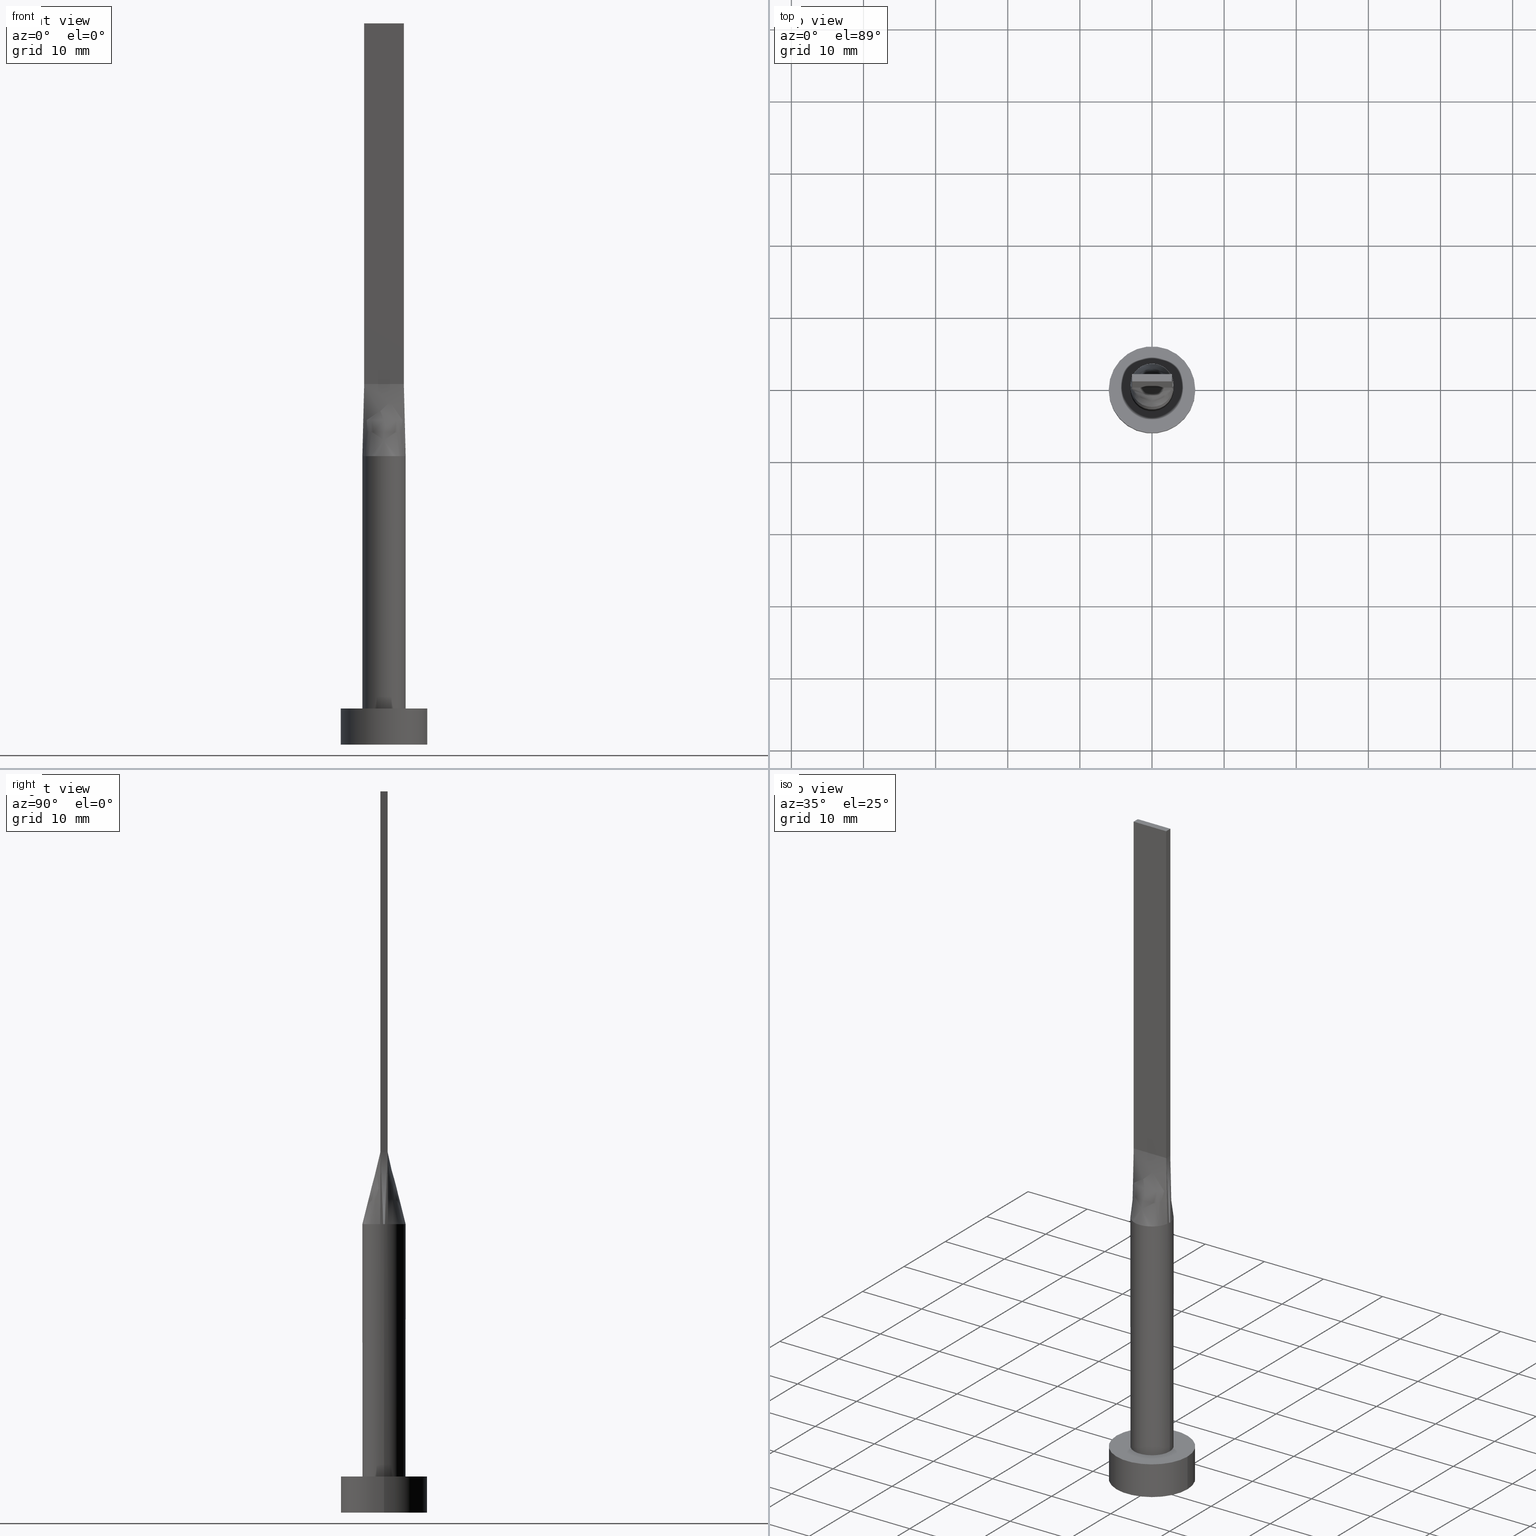
[diagram: canonical four-view strip — front | top / right | iso, engineering-drawing reading convention]
A machine part, canonical four-view strip (front | top / right | iso — engineering-drawing reading convention). The complete STEP part file that produces these views, byte-faithful:
ISO-10303-21;
HEADER;
FILE_DESCRIPTION (( 'STEP AP203' ),
    '1' );
FILE_NAME ('8c4a.STEP',
    '2023-02-13T10:31:02',
    ( '' ),
    ( '' ),
    'SwSTEP 2.0',
    'SolidWorks 2019',
    '' );
FILE_SCHEMA (( 'CONFIG_CONTROL_DESIGN' ));
ENDSEC;

DATA;
#1 = CARTESIAN_POINT ( 'NONE',  ( -2.829409566978767110, -1.041313647073048854, 40.00000000000001421 ) ) ;
#2 = PERSON_AND_ORGANIZATION ( #155, #391 ) ;
#3 = AXIS2_PLACEMENT_3D ( 'NONE', #577, #175, #482 ) ;
#4 = VERTEX_POINT ( 'NONE', #68 ) ;
#5 = FACE_OUTER_BOUND ( 'NONE', #225, .T. ) ;
#6 = ORIENTED_EDGE ( 'NONE', *, *, #278, .F. ) ;
#7 = CARTESIAN_POINT ( 'NONE',  ( -2.750000000000000000, -0.1666666666666636043, 50.00000000000000000 ) ) ;
#8 = VECTOR ( 'NONE', #64, 1000.000000000000000 ) ;
#9 = ADVANCED_FACE ( 'NONE', ( #572 ), #337, .F. ) ;
#10 = LINE ( 'NONE', #544, #196 ) ;
#11 = ORIENTED_EDGE ( 'NONE', *, *, #378, .F. ) ;
#12 = CARTESIAN_POINT ( 'NONE',  ( -2.750000000000000000, -0.4999999999999994449, 50.00000000000000000 ) ) ;
#13 = VECTOR ( 'NONE', #40, 1000.000000000000000 ) ;
#14 = ORIENTED_EDGE ( 'NONE', *, *, #573, .F. ) ;
#15 = CARTESIAN_POINT ( 'NONE',  ( 1.604166666666662078, 0.5000000000000002220, 50.00000000000000000 ) ) ;
#16 = DIRECTION ( 'NONE',  ( -0.02015674154923149941, -0.003664862099860237768, -0.9997901152521495582 ) ) ;
#17 = EDGE_LOOP ( 'NONE', ( #442, #360, #386, #162, #246 ) ) ;
#18 = ADVANCED_FACE ( 'NONE', ( #557 ), #67, .F. ) ;
#19 = CARTESIAN_POINT ( 'NONE',  ( 2.567367750129863957, 1.580669302822274913, 40.00000000000000000 ) ) ;
#20 = FACE_OUTER_BOUND ( 'NONE', #17, .T. ) ;
#21 = CC_DESIGN_PERSON_AND_ORGANIZATION_ASSIGNMENT ( #450, #184, ( #178 ) ) ;
#22 = CARTESIAN_POINT ( 'NONE',  ( 2.750000000000000000, 0.5000000000000002220, 100.0000000000000000 ) ) ;
#23 = DIRECTION ( 'NONE',  ( -0.000000000000000000, -0.000000000000000000, -1.000000000000000000 ) ) ;
#24 = CARTESIAN_POINT ( 'NONE',  ( 2.829409566978765334, -1.041313647073049742, 40.00000000000001421 ) ) ;
#25 = FACE_OUTER_BOUND ( 'NONE', #144, .T. ) ;
#26 = DESIGN_CONTEXT ( 'detailed design', #32, 'design' ) ;
#27 = DATE_AND_TIME ( #167, #486 ) ;
#28 = EDGE_LOOP ( 'NONE', ( #542, #11, #303, #357 ) ) ;
#29 = EDGE_CURVE ( 'NONE', #525, #312, #374, .T. ) ;
#30 = VECTOR ( 'NONE', #158, 1000.000000000000000 ) ;
#31 = CARTESIAN_POINT ( 'NONE',  ( 2.750000000000000000, -0.4999999999999997780, 100.0000000000000000 ) ) ;
#32 = APPLICATION_CONTEXT ( 'configuration controlled 3d designs of mechanical parts and assemblies' ) ;
#33 = CALENDAR_DATE ( 2023, 13, 2 ) ;
#34 = CARTESIAN_POINT ( 'NONE',  ( 0.000000000000000000, 0.000000000000000000, 40.00000000000000000 ) ) ;
#35 = CARTESIAN_POINT ( 'NONE',  ( -2.520833333333333925, 0.5000000000000002220, 50.00000000000000000 ) ) ;
#36 = ORIENTED_EDGE ( 'NONE', *, *, #119, .T. ) ;
#37 = CARTESIAN_POINT ( 'NONE',  ( -2.750000000000000000, 0.5000000000000002220, 50.00000000000000000 ) ) ;
#38 = EDGE_CURVE ( 'NONE', #254, #407, #110, .T. ) ;
#39 = DIRECTION ( 'NONE',  ( 1.000000000000000000, 0.000000000000000000, -0.000000000000000000 ) ) ;
#40 = DIRECTION ( 'NONE',  ( -0.000000000000000000, -0.000000000000000000, -1.000000000000000000 ) ) ;
#41 = LOCAL_TIME ( 11, 31, 2.000000000000000000, #130 ) ;
#42 = CARTESIAN_POINT ( 'NONE',  ( 0.8331239790496237640, 2.909606296598776787, 40.00000000000000000 ) ) ;
#43 = ORIENTED_EDGE ( 'NONE', *, *, #476, .F. ) ;
#44 = CIRCLE ( 'NONE', #367, 6.000000000000000888 ) ;
#45 = EDGE_LOOP ( 'NONE', ( #151, #73, #224, #154 ) ) ;
#46 = ORIENTED_EDGE ( 'NONE', *, *, #251, .F. ) ;
#47 = DIRECTION ( 'NONE',  ( 0.000000000000000000, 0.000000000000000000, 1.000000000000000000 ) ) ;
#48 = DATE_AND_TIME ( #454, #41 ) ;
#49 = CARTESIAN_POINT ( 'NONE',  ( -2.291666666666666075, -0.4999999999999994449, 50.00000000000000000 ) ) ;
#50 = ADVANCED_FACE ( 'NONE', ( #25 ), #379, .T. ) ;
#51 = CC_DESIGN_SECURITY_CLASSIFICATION ( #178, ( #273 ) ) ;
#52 = CARTESIAN_POINT ( 'NONE',  ( 2.951896064709005785, -0.5367080392066734262, 40.00000000000000000 ) ) ;
#53 = ORIENTED_EDGE ( 'NONE', *, *, #422, .F. ) ;
#54 = ORIENTED_EDGE ( 'NONE', *, *, #567, .F. ) ;
#55 = DATE_AND_TIME ( #301, #310 ) ;
#56 = DIRECTION ( 'NONE',  ( -0.000000000000000000, -0.000000000000000000, -1.000000000000000000 ) ) ;
#57 = ADVANCED_FACE ( 'NONE', ( #114 ), #201, .F. ) ;
#58 = VERTEX_POINT ( 'NONE', #74 ) ;
#59 = DIRECTION ( 'NONE',  ( -0.000000000000000000, -0.000000000000000000, -1.000000000000000000 ) ) ;
#60 = CARTESIAN_POINT ( 'NONE',  ( 2.291666666666666519, -0.4999999999999997780, 50.00000000000000000 ) ) ;
#61 = CARTESIAN_POINT ( 'NONE',  ( 1.566158656300002061, 2.589797565249318811, 40.00000000000000000 ) ) ;
#62 = EDGE_CURVE ( 'NONE', #407, #415, #507, .T. ) ;
#63 = DIRECTION ( 'NONE',  ( -0.000000000000000000, -0.000000000000000000, -1.000000000000000000 ) ) ;
#64 = DIRECTION ( 'NONE',  ( -1.000000000000000000, 0.000000000000000000, 0.000000000000000000 ) ) ;
#65 = CARTESIAN_POINT ( 'NONE',  ( -6.000000000000000888, 0.000000000000000000, 0.000000000000000000 ) ) ;
#66 = CARTESIAN_POINT ( 'NONE',  ( 0.4583333333333342030, -0.4999999999999995559, 50.00000000000000000 ) ) ;
#67 = PLANE ( 'NONE',  #403 ) ;
#68 = CARTESIAN_POINT ( 'NONE',  ( 6.000000000000000888, 7.347880794884120722E-16, 5.000000000000000000 ) ) ;
#69 = CARTESIAN_POINT ( 'NONE',  ( 1.882426928433513114, -2.362790634184936511, 40.00000000000000000 ) ) ;
#70 = CARTESIAN_POINT ( 'NONE',  ( 2.983609730299722429, -0.3606563145999500120, 40.00000000000000000 ) ) ;
#71 = ADVANCED_FACE ( 'NONE', ( #20 ), #558, .T. ) ;
#72 = PERSON_AND_ORGANIZATION ( #155, #391 ) ;
#73 = ORIENTED_EDGE ( 'NONE', *, *, #536, .T. ) ;
#74 = CARTESIAN_POINT ( 'NONE',  ( 3.000000000000000444, 3.673940397442060361E-16, 5.000000000000000000 ) ) ;
#75 = PERSON_AND_ORGANIZATION ( #155, #391 ) ;
#76 = EDGE_LOOP ( 'NONE', ( #540, #433, #217, #190 ) ) ;
#77 = ORIENTED_EDGE ( 'NONE', *, *, #548, .F. ) ;
#78 = LINE ( 'NONE', #255, #491 ) ;
#79 = DIRECTION ( 'NONE',  ( 1.000000000000000000, 0.000000000000000000, 0.000000000000000000 ) ) ;
#80 = DIRECTION ( 'NONE',  ( 1.000000000000000000, 0.000000000000000000, 0.000000000000000000 ) ) ;
#81 = VECTOR ( 'NONE', #91, 1000.000000000000000 ) ;
#82 = CARTESIAN_POINT ( 'NONE',  ( 0.000000000000000000, 0.000000000000000000, 0.000000000000000000 ) ) ;
#83 = CARTESIAN_POINT ( 'NONE',  ( 0.000000000000000000, 0.000000000000000000, 5.000000000000000000 ) ) ;
#84 = VERTEX_POINT ( 'NONE', #65 ) ;
#85 = B_SPLINE_CURVE_WITH_KNOTS ( 'NONE', 3,
 ( #393, #215, #575, #349, #172, #436, #395, #42, #345, #214, #520, #291, #526, #384, #477, #128, #523, #252 ),
 .UNSPECIFIED., .F., .F.,
 ( 4, 2, 2, 2, 2, 2, 2, 2, 4 ),
 ( 0.000000000000000000, 0.1250000000000000000, 0.2500000000000000000, 0.3750000000000000000, 0.5000000000000000000, 0.6250000000000000000, 0.7500000000000000000, 0.8750000000000000000, 1.000000000000000000 ),
 .UNSPECIFIED. ) ;
#86 = DIRECTION ( 'NONE',  ( 0.000000000000000000, 0.000000000000000000, 1.000000000000000000 ) ) ;
#87 = CARTESIAN_POINT ( 'NONE',  ( -2.999804865149861666, -2.046477192139111704E-15, 40.00000000000000000 ) ) ;
#88 = VECTOR ( 'NONE', #579, 1000.000000000000114 ) ;
#89 = CARTESIAN_POINT ( 'NONE',  ( -2.750000000000000000, 0.5000000000000002220, 100.0000000000000000 ) ) ;
#90 = VERTEX_POINT ( 'NONE', #289 ) ;
#91 = DIRECTION ( 'NONE',  ( 0.000000000000000000, -1.000000000000000000, 0.000000000000000000 ) ) ;
#92 = VECTOR ( 'NONE', #503, 1000.000000000000000 ) ;
#93 = DIRECTION ( 'NONE',  ( -0.02015674154923149941, -0.003664862099860194400, 0.9997901152521495582 ) ) ;
#94 = LINE ( 'NONE', #496, #460 ) ;
#95 = VECTOR ( 'NONE', #103, 1000.000000000000000 ) ;
#96 = APPROVAL_STATUS ( 'not_yet_approved' ) ;
#97 = DIRECTION ( 'NONE',  ( -1.000000000000000000, 0.000000000000000000, 0.000000000000000000 ) ) ;
#98 = ADVANCED_FACE ( 'NONE', ( #249 ), #427, .T. ) ;
#99 = ORIENTED_EDGE ( 'NONE', *, *, #150, .F. ) ;
#100 = VERTEX_POINT ( 'NONE', #149 ) ;
#101 = AXIS2_PLACEMENT_3D ( 'NONE', #89, #39, #236 ) ;
#102 = LINE ( 'NONE', #534, #351 ) ;
#103 = DIRECTION ( 'NONE',  ( -1.000000000000000000, -0.000000000000000000, -0.000000000000000000 ) ) ;
#104 = LOCAL_TIME ( 11, 31, 2.000000000000000000, #179 ) ;
#105 = ORIENTED_EDGE ( 'NONE', *, *, #271, .T. ) ;
#106 = CARTESIAN_POINT ( 'NONE',  ( 0.4172881767044969714, -3.000000000000000444, 40.00000000000000000 ) ) ;
#107 = DIRECTION ( 'NONE',  ( 1.000000000000000000, 0.000000000000000000, -0.000000000000000000 ) ) ;
#108 = EDGE_CURVE ( 'NONE', #315, #489, #318, .T. ) ;
#109 = CARTESIAN_POINT ( 'NONE',  ( -3.000000000000000444, 0.000000000000000000, 5.000000000000000000 ) ) ;
#110 = LINE ( 'NONE', #459, #125 ) ;
#111 = CARTESIAN_POINT ( 'NONE',  ( 0.4172881767044975820, 3.000000000000000000, 40.00000000000000000 ) ) ;
#112 = DIRECTION ( 'NONE',  ( 0.000000000000000000, 0.000000000000000000, 1.000000000000000000 ) ) ;
#113 = CARTESIAN_POINT ( 'NONE',  ( -0.9166666666666658525, -0.4999999999999995559, 50.00000000000000711 ) ) ;
#114 = FACE_OUTER_BOUND ( 'NONE', #437, .T. ) ;
#115 = VERTEX_POINT ( 'NONE', #238 ) ;
#116 = ORIENTED_EDGE ( 'NONE', *, *, #466, .F. ) ;
#117 = CARTESIAN_POINT ( 'NONE',  ( 2.951609730299722845, 0.5366563145999491136, 40.00000000000000000 ) ) ;
#118 = CARTESIAN_POINT ( 'NONE',  ( -3.000000000000000444, 0.000000000000000000, 40.00000000000000000 ) ) ;
#119 = EDGE_CURVE ( 'NONE', #266, #415, #453, .T. ) ;
#120 =( NAMED_UNIT ( * ) SI_UNIT ( $, .STERADIAN. ) SOLID_ANGLE_UNIT ( ) );
#121 = AXIS2_PLACEMENT_3D ( 'NONE', #440, #47, #265 ) ;
#122 = FACE_OUTER_BOUND ( 'NONE', #545, .T. ) ;
#123 = APPROVAL_STATUS ( 'not_yet_approved' ) ;
#124 = LINE ( 'NONE', #530, #81 ) ;
#125 = VECTOR ( 'NONE', #23, 1000.000000000000000 ) ;
#126 = PRODUCT ( '8c4a', '8c4a', '', ( #470 ) ) ;
#127 = CARTESIAN_POINT ( 'NONE',  ( -2.291666666666668295, 0.5000000000000002220, 50.00000000000000000 ) ) ;
#128 = CARTESIAN_POINT ( 'NONE',  ( -2.829409566978765334, 1.041313647073049298, 40.00000000000001421 ) ) ;
#129 = ORIENTED_EDGE ( 'NONE', *, *, #399, .F. ) ;
#130 = COORDINATED_UNIVERSAL_TIME_OFFSET ( 1, 0, .AHEAD. ) ;
#131 = LINE ( 'NONE', #302, #439 ) ;
#132 = ORIENTED_EDGE ( 'NONE', *, *, #548, .T. ) ;
#133 = ADVANCED_FACE ( 'NONE', ( #153 ), #324, .T. ) ;
#134 = SECURITY_CLASSIFICATION_LEVEL ( 'unclassified' ) ;
#135 = CARTESIAN_POINT ( 'NONE',  ( -2.983609730299723317, -0.3606563145999489572, 40.00000000000000000 ) ) ;
#136 = CALENDAR_DATE ( 2023, 13, 2 ) ;
#137 = ORIENTED_EDGE ( 'NONE', *, *, #150, .T. ) ;
#138 = CARTESIAN_POINT ( 'NONE',  ( -2.750000000000000000, -0.4999999999999993339, 50.00000000000000000 ) ) ;
#139 = DATE_AND_TIME ( #136, #104 ) ;
#140 = ADVANCED_FACE ( 'NONE', ( #417, #198 ), #373, .T. ) ;
#141 = CARTESIAN_POINT ( 'NONE',  ( 0.000000000000000000, 0.000000000000000000, 0.000000000000000000 ) ) ;
#142 = ORIENTED_EDGE ( 'NONE', *, *, #476, .T. ) ;
#143 = PERSON_AND_ORGANIZATION_ROLE ( 'design_supplier' ) ;
#144 = EDGE_LOOP ( 'NONE', ( #129, #46, #340, #484, #137, #169 ) ) ;
#145 = LINE ( 'NONE', #499, #88 ) ;
#146 = DIRECTION ( 'NONE',  ( 0.000000000000000000, -1.000000000000000000, 0.000000000000000000 ) ) ;
#147 = ORIENTED_EDGE ( 'NONE', *, *, #449, .T. ) ;
#148 = CARTESIAN_POINT ( 'NONE',  ( 1.833333333333329485, 0.5000000000000002220, 50.00000000000000000 ) ) ;
#149 = CARTESIAN_POINT ( 'NONE',  ( -2.750000000000000000, 0.5000000000000002220, 50.00000000000000000 ) ) ;
#150 = EDGE_CURVE ( 'NONE', #266, #497, #517, .T. ) ;
#151 = ORIENTED_EDGE ( 'NONE', *, *, #271, .F. ) ;
#152 = LINE ( 'NONE', #321, #446 ) ;
#153 = FACE_OUTER_BOUND ( 'NONE', #274, .T. ) ;
#154 = ORIENTED_EDGE ( 'NONE', *, *, #199, .F. ) ;
#155 = PERSON ( 'NEUR�EN�', 'NEUR�EN�', 'NEUR�EN�', ('NEUR�EN�'), ('NEUR�EN�'), ('NEUR�EN�') ) ;
#156 = DIRECTION ( 'NONE',  ( 0.02015674154923146125, -0.003664862099860172716, 0.9997901152521495582 ) ) ;
#157 = CARTESIAN_POINT ( 'NONE',  ( 2.750000000000000000, -0.3333333333333333703, 50.00000000000000000 ) ) ;
#158 = DIRECTION ( 'NONE',  ( -0.000000000000000000, -0.000000000000000000, -1.000000000000000000 ) ) ;
#159 = CARTESIAN_POINT ( 'NONE',  ( 0.000000000000000000, 0.000000000000000000, 40.00000000000000000 ) ) ;
#160 = AXIS2_PLACEMENT_3D ( 'NONE', #304, #452, #313 ) ;
#161 = CARTESIAN_POINT ( 'NONE',  ( 0.2291666666666675733, -0.4999999999999995559, 50.00000000000000711 ) ) ;
#162 = ORIENTED_EDGE ( 'NONE', *, *, #338, .F. ) ;
#163 = CARTESIAN_POINT ( 'NONE',  ( 2.750000000000000000, 0.1666666666666664354, 50.00000000000000000 ) ) ;
#164 = DIRECTION ( 'NONE',  ( 1.000000000000000000, 0.000000000000000000, 0.000000000000000000 ) ) ;
#165 = VECTOR ( 'NONE', #414, 1000.000000000000000 ) ;
#166 = DIRECTION ( 'NONE',  ( 1.000000000000000000, 1.776356839400250465E-15, 0.000000000000000000 ) ) ;
#167 = CALENDAR_DATE ( 2023, 13, 2 ) ;
#168 = DIRECTION ( 'NONE',  ( 1.000000000000000000, -5.913830031739115543E-17, 0.000000000000000000 ) ) ;
#169 = ORIENTED_EDGE ( 'NONE', *, *, #431, .T. ) ;
#170 = CARTESIAN_POINT ( 'NONE',  ( -6.000000000000000888, 0.000000000000000000, 5.000000000000000000 ) ) ;
#171 = CARTESIAN_POINT ( 'NONE',  ( -2.907609730299723250, 0.7786563145999495505, 40.00000000000000000 ) ) ;
#172 = CARTESIAN_POINT ( 'NONE',  ( 2.382399439808187580, 1.857547746650221709, 40.00000000000000000 ) ) ;
#173 = ORIENTED_EDGE ( 'NONE', *, *, #399, .T. ) ;
#174 = CARTESIAN_POINT ( 'NONE',  ( -2.951609730299722401, 0.5366563145999488915, 40.00000000000000000 ) ) ;
#175 = DIRECTION ( 'NONE',  ( 0.000000000000000000, 0.000000000000000000, 1.000000000000000000 ) ) ;
#176 = EDGE_CURVE ( 'NONE', #312, #285, #85, .T. ) ;
#177 = LINE ( 'NONE', #316, #95 ) ;
#178 = SECURITY_CLASSIFICATION ( '', '', #134 ) ;
#179 = COORDINATED_UNIVERSAL_TIME_OFFSET ( 1, 0, .AHEAD. ) ;
#180 = ORIENTED_EDGE ( 'NONE', *, *, #405, .F. ) ;
#181 = CARTESIAN_POINT ( 'NONE',  ( -1.604166666666666075, -0.4999999999999995559, 50.00000000000000000 ) ) ;
#182 = AXIS2_PLACEMENT_3D ( 'NONE', #425, #326, #561 ) ;
#183 = EDGE_CURVE ( 'NONE', #58, #497, #242, .T. ) ;
#184 = PERSON_AND_ORGANIZATION_ROLE ( 'classification_officer' ) ;
#185 = CARTESIAN_POINT ( 'NONE',  ( -2.382399439808189356, -1.857547746650220599, 40.00000000000000000 ) ) ;
#186 = ORIENTED_EDGE ( 'NONE', *, *, #493, .T. ) ;
#187 = ORIENTED_EDGE ( 'NONE', *, *, #493, .F. ) ;
#188 = ORIENTED_EDGE ( 'NONE', *, *, #176, .T. ) ;
#189 = CARTESIAN_POINT ( 'NONE',  ( 2.750000000000000000, 0.5000000000000002220, 50.00000000000000000 ) ) ;
#190 = ORIENTED_EDGE ( 'NONE', *, *, #320, .T. ) ;
#191 = LINE ( 'NONE', #494, #239 ) ;
#192 = CARTESIAN_POINT ( 'NONE',  ( 2.520833333333332593, 0.5000000000000002220, 50.00000000000000000 ) ) ;
#193 = CARTESIAN_POINT ( 'NONE',  ( 0.000000000000000000, 0.000000000000000000, 5.000000000000000000 ) ) ;
#194 = CARTESIAN_POINT ( 'NONE',  ( 0.8331239790496237640, 2.909606296598776787, 40.00000000000000000 ) ) ;
#195 = CARTESIAN_POINT ( 'NONE',  ( 0.000000000000000000, 0.000000000000000000, 40.00000000000000000 ) ) ;
#196 = VECTOR ( 'NONE', #59, 1000.000000000000000 ) ;
#197 = CARTESIAN_POINT ( 'NONE',  ( -0.4172881767044983592, -2.999999999999999556, 40.00000000000000000 ) ) ;
#198 = FACE_OUTER_BOUND ( 'NONE', #248, .T. ) ;
#199 = EDGE_CURVE ( 'NONE', #264, #84, #78, .T. ) ;
#200 = CARTESIAN_POINT ( 'NONE',  ( 6.000000000000000888, 7.347880794884120722E-16, 5.000000000000000000 ) ) ;
#201 = PLANE ( 'NONE',  #508 ) ;
#202 = CARTESIAN_POINT ( 'NONE',  ( -0.8331239790496242081, -2.909606296598777231, 40.00000000000000000 ) ) ;
#203 = EDGE_LOOP ( 'NONE', ( #348, #173, #533, #99, #54, #483 ) ) ;
#204 = CARTESIAN_POINT ( 'NONE',  ( 2.951609730299722401, -0.5366563145999498907, 40.00000000000000000 ) ) ;
#205 = CC_DESIGN_APPROVAL ( #531, ( #260 ) ) ;
#206 = CARTESIAN_POINT ( 'NONE',  ( -2.750000000000000000, 0.5000000000000002220, 100.0000000000000000 ) ) ;
#207 = DATE_AND_TIME ( #33, #532 ) ;
#208 = DIRECTION ( 'NONE',  ( -1.000000000000000000, 0.000000000000000000, 0.000000000000000000 ) ) ;
#209 = EDGE_CURVE ( 'NONE', #415, #480, #394, .T. ) ;
#210 = CARTESIAN_POINT ( 'NONE',  ( -2.750000000000000000, 0.3333333333333353132, 50.00000000000000000 ) ) ;
#211 =( NAMED_UNIT ( * ) PLANE_ANGLE_UNIT ( ) SI_UNIT ( $, .RADIAN. ) );
#212 = ORIENTED_EDGE ( 'NONE', *, *, #431, .F. ) ;
#213 = AXIS2_PLACEMENT_3D ( 'NONE', #141, #406, #455 ) ;
#214 = CARTESIAN_POINT ( 'NONE',  ( -0.4172881767044976375, 2.999999999999999556, 40.00000000000000000 ) ) ;
#215 = CARTESIAN_POINT ( 'NONE',  ( 2.907609730299723250, 0.7786563145999496616, 39.99999999999999289 ) ) ;
#216 = AXIS2_PLACEMENT_3D ( 'NONE', #241, #322, #279 ) ;
#217 = ORIENTED_EDGE ( 'NONE', *, *, #449, .F. ) ;
#218 = CARTESIAN_POINT ( 'NONE',  ( -2.951609730299722845, -0.5366563145999487805, 40.00000000000000000 ) ) ;
#219 = MANIFOLD_SOLID_BREP ( 'P�idat vysunut�m5', #559 ) ;
#220 = ORIENTED_EDGE ( 'NONE', *, *, #567, .T. ) ;
#221 = CARTESIAN_POINT ( 'NONE',  ( -2.567367750129864845, -1.580669302822274691, 40.00000000000000000 ) ) ;
#222 = EDGE_CURVE ( 'NONE', #100, #407, #124, .T. ) ;
#223 = FACE_OUTER_BOUND ( 'NONE', #364, .T. ) ;
#224 = ORIENTED_EDGE ( 'NONE', *, *, #405, .T. ) ;
#225 = EDGE_LOOP ( 'NONE', ( #578, #43, #580, #346 ) ) ;
#226 = SHAPE_DEFINITION_REPRESENTATION ( #327, #568 ) ;
#227 = DIRECTION ( 'NONE',  ( -0.000000000000000000, -0.000000000000000000, -1.000000000000000000 ) ) ;
#228 = APPROVAL_ROLE ( '' ) ;
#229 = PLANE ( 'NONE',  #256 ) ;
#230 = CIRCLE ( 'NONE', #300, 6.000000000000000888 ) ;
#231 = CARTESIAN_POINT ( 'NONE',  ( 2.907609730299723250, -0.7786563145999499946, 40.00000000000000000 ) ) ;
#232 = ORIENTED_EDGE ( 'NONE', *, *, #222, .F. ) ;
#233 = CARTESIAN_POINT ( 'NONE',  ( 0.9166666666666606345, 0.5000000000000002220, 50.00000000000000711 ) ) ;
#234 = CARTESIAN_POINT ( 'NONE',  ( 2.750000000000000000, -0.4999999999999997780, 100.0000000000000000 ) ) ;
#235 = ORIENTED_EDGE ( 'NONE', *, *, #518, .F. ) ;
#236 = DIRECTION ( 'NONE',  ( -0.000000000000000000, 0.000000000000000000, -1.000000000000000000 ) ) ;
#237 = CARTESIAN_POINT ( 'NONE',  ( 2.382399439808186692, -1.857547746650222154, 39.99999999999998579 ) ) ;
#238 = CARTESIAN_POINT ( 'NONE',  ( -2.750000000000000000, 0.5000000000000002220, 100.0000000000000000 ) ) ;
#239 = VECTOR ( 'NONE', #146, 1000.000000000000000 ) ;
#240 = CARTESIAN_POINT ( 'NONE',  ( 2.750000000000000000, -0.4999999999999997780, 50.00000000000000000 ) ) ;
#241 = CARTESIAN_POINT ( 'NONE',  ( 0.000000000000000000, 0.000000000000000000, 100.0000000000000000 ) ) ;
#242 = CIRCLE ( 'NONE', #314, 3.000000000000000444 ) ;
#243 = CARTESIAN_POINT ( 'NONE',  ( 2.520833333333333037, -0.4999999999999997780, 50.00000000000000000 ) ) ;
#244 = CARTESIAN_POINT ( 'NONE',  ( 2.999609730299722887, 0.1803281572999744509, 40.00000000000000000 ) ) ;
#245 = UNCERTAINTY_MEASURE_WITH_UNIT (LENGTH_MEASURE( 1.000000000000000082E-05 ), #253, 'distance_accuracy_value', 'NONE');
#246 = ORIENTED_EDGE ( 'NONE', *, *, #438, .F. ) ;
#247 = APPROVAL_ROLE ( '' ) ;
#248 = EDGE_LOOP ( 'NONE', ( #142, #105 ) ) ;
#249 = FACE_OUTER_BOUND ( 'NONE', #45, .T. ) ;
#250 = CIRCLE ( 'NONE', #213, 6.000000000000000888 ) ;
#251 = EDGE_CURVE ( 'NONE', #480, #525, #469, .T. ) ;
#252 = CARTESIAN_POINT ( 'NONE',  ( -2.951881273711813858, 0.5367053345652121887, 40.00000000000000000 ) ) ;
#253 =( LENGTH_UNIT ( ) NAMED_UNIT ( * ) SI_UNIT ( .MILLI., .METRE. ) );
#254 = VERTEX_POINT ( 'NONE', #479 ) ;
#255 = CARTESIAN_POINT ( 'NONE',  ( -6.000000000000000888, 0.000000000000000000, 5.000000000000000000 ) ) ;
#256 = AXIS2_PLACEMENT_3D ( 'NONE', #362, #97, #365 ) ;
#257 = APPLICATION_PROTOCOL_DEFINITION ( 'international standard', 'config_control_design', 1994, #32 ) ;
#258 = DIRECTION ( 'NONE',  ( 0.000000000000000000, 0.000000000000000000, 1.000000000000000000 ) ) ;
#259 = ORIENTED_EDGE ( 'NONE', *, *, #62, .F. ) ;
#260 = PRODUCT_DEFINITION ( 'NEZN�M�', '', #273, #26 ) ;
#261 = CARTESIAN_POINT ( 'NONE',  ( 0.000000000000000000, 0.000000000000000000, 0.000000000000000000 ) ) ;
#262 = DIRECTION ( 'NONE',  ( -0.000000000000000000, -0.000000000000000000, -1.000000000000000000 ) ) ;
#263 = CYLINDRICAL_SURFACE ( 'NONE', #331, 3.000000000000000444 ) ;
#264 = VERTEX_POINT ( 'NONE', #170 ) ;
#265 = DIRECTION ( 'NONE',  ( 1.000000000000000000, 0.000000000000000000, 0.000000000000000000 ) ) ;
#266 = VERTEX_POINT ( 'NONE', #87 ) ;
#267 = CARTESIAN_POINT ( 'NONE',  ( -2.951885853416577277, -0.5367063210726346068, 40.00000000000000000 ) ) ;
#268 = APPROVAL_DATE_TIME ( #139, #490 ) ;
#269 = CARTESIAN_POINT ( 'NONE',  ( 0.000000000000000000, 0.000000000000000000, 5.000000000000000000 ) ) ;
#270 = CARTESIAN_POINT ( 'NONE',  ( 2.750000000000000000, 0.5000000000000002220, 50.00000000000000000 ) ) ;
#271 = EDGE_CURVE ( 'NONE', #4, #264, #44, .T. ) ;
#272 = CARTESIAN_POINT ( 'NONE',  ( 2.999804865149861666, 7.183978618307599791E-16, 40.00000000000000000 ) ) ;
#273 = PRODUCT_DEFINITION_FORMATION_WITH_SPECIFIED_SOURCE ( 'LIBOVOLN�', '', #126, .NOT_KNOWN. ) ;
#274 = EDGE_LOOP ( 'NONE', ( #451, #147, #424, #444 ) ) ;
#275 = DIRECTION ( 'NONE',  ( 1.000000000000000000, -5.913830031739115543E-17, 0.000000000000000000 ) ) ;
#276 = CARTESIAN_POINT ( 'NONE',  ( -2.850804865149861644, -0.5183281572999741682, 45.00000000000000000 ) ) ;
#277 = CARTESIAN_POINT ( 'NONE',  ( 2.951609730299722401, 0.5366563145999496687, 40.00000000000000000 ) ) ;
#278 = EDGE_CURVE ( 'NONE', #254, #315, #131, .T. ) ;
#279 = DIRECTION ( 'NONE',  ( 1.000000000000000000, 0.000000000000000000, -0.000000000000000000 ) ) ;
#280 = FACE_OUTER_BOUND ( 'NONE', #551, .T. ) ;
#281 = CC_DESIGN_PERSON_AND_ORGANIZATION_ASSIGNMENT ( #290, #472, ( #260 ) ) ;
#282 = DIRECTION ( 'NONE',  ( 0.000000000000000000, 0.000000000000000000, 1.000000000000000000 ) ) ;
#283 = VECTOR ( 'NONE', #275, 1000.000000000000000 ) ;
#284 = CARTESIAN_POINT ( 'NONE',  ( 2.907609730299723250, 0.7786563145999496616, 39.99999999999999289 ) ) ;
#285 = VERTEX_POINT ( 'NONE', #474 ) ;
#286 = CARTESIAN_POINT ( 'NONE',  ( -2.750000000000000000, -0.4999999999999994449, 100.0000000000000000 ) ) ;
#287 = B_SPLINE_SURFACE_WITH_KNOTS ( 'NONE', 3, 1, ( 
 ( #293, #37 ),
 ( #432, #210 ),
 ( #390, #570 ),
 ( #341, #7 ),
 ( #135, #402 ),
 ( #218, #138 ) ),
 .UNSPECIFIED., .F., .F., .F.,
 ( 4, 2, 4 ),
 ( 2, 2 ),
 ( 0.000000000000000000, 0.5000000000000000000, 1.000000000000000000 ),
 ( 0.000000000000000000, 1.000000000000000000 ),
 .UNSPECIFIED. ) ;
#288 = APPLICATION_PROTOCOL_DEFINITION ( 'international standard', 'config_control_design', 1994, #299 ) ;
#289 = CARTESIAN_POINT ( 'NONE',  ( 6.000000000000000888, 7.347880794884120722E-16, 0.000000000000000000 ) ) ;
#290 = PERSON_AND_ORGANIZATION ( #155, #391 ) ;
#291 = CARTESIAN_POINT ( 'NONE',  ( -1.566158656300002061, 2.589797565249319700, 40.00000000000000000 ) ) ;
#292 = APPROVAL_PERSON_ORGANIZATION ( #358, #366, #397 ) ;
#293 = CARTESIAN_POINT ( 'NONE',  ( -2.951609730299722401, 0.5366563145999495577, 40.00000000000000000 ) ) ;
#294 = CARTESIAN_POINT ( 'NONE',  ( -0.8331239790496237640, 2.909606296598777231, 40.00000000000000000 ) ) ;
#295 = CARTESIAN_POINT ( 'NONE',  ( 0.000000000000000000, 0.000000000000000000, 40.00000000000000000 ) ) ;
#296 = ORIENTED_EDGE ( 'NONE', *, *, #209, .T. ) ;
#297 = CARTESIAN_POINT ( 'NONE',  ( -1.833333333333337256, 0.5000000000000002220, 50.00000000000000000 ) ) ;
#298 = DIRECTION ( 'NONE',  ( -0.000000000000000000, -0.000000000000000000, -1.000000000000000000 ) ) ;
#299 = APPLICATION_CONTEXT ( 'configuration controlled 3d designs of mechanical parts and assemblies' ) ;
#300 = AXIS2_PLACEMENT_3D ( 'NONE', #261, #435, #164 ) ;
#301 = CALENDAR_DATE ( 2023, 13, 2 ) ;
#302 = CARTESIAN_POINT ( 'NONE',  ( -2.750000000000000000, -0.4999999999999994449, 100.0000000000000000 ) ) ;
#303 = ORIENTED_EDGE ( 'NONE', *, *, #108, .F. ) ;
#304 = CARTESIAN_POINT ( 'NONE',  ( 0.000000000000000000, 0.000000000000000000, 5.000000000000000000 ) ) ;
#305 = ADVANCED_FACE ( 'NONE', ( #488 ), #263, .T. ) ;
#306 = DATE_TIME_ROLE ( 'classification_date' ) ;
#307 = CYLINDRICAL_SURFACE ( 'NONE', #538, 6.000000000000000888 ) ;
#308 = PERSON_AND_ORGANIZATION_ROLE ( 'creator' ) ;
#309 = CARTESIAN_POINT ( 'NONE',  ( -2.750000000000000000, -0.4999999999999994449, 50.00000000000000000 ) ) ;
#310 = LOCAL_TIME ( 11, 31, 2.000000000000000000, #408 ) ;
#311 = ORIENTED_EDGE ( 'NONE', *, *, #378, .T. ) ;
#312 = VERTEX_POINT ( 'NONE', #387 ) ;
#313 = DIRECTION ( 'NONE',  ( 1.000000000000000000, 0.000000000000000000, 0.000000000000000000 ) ) ;
#314 = AXIS2_PLACEMENT_3D ( 'NONE', #83, #434, #566 ) ;
#315 = VERTEX_POINT ( 'NONE', #31 ) ;
#316 = CARTESIAN_POINT ( 'NONE',  ( -2.750000000000000000, 0.5000000000000002220, 50.00000000000000000 ) ) ;
#317 = CARTESIAN_POINT ( 'NONE',  ( 2.382399439808187580, 1.857547746650221709, 40.00000000000000000 ) ) ;
#318 = LINE ( 'NONE', #234, #165 ) ;
#319 = CC_DESIGN_APPROVAL ( #366, ( #178 ) ) ;
#320 = EDGE_CURVE ( 'NONE', #115, #100, #336, .T. ) ;
#321 = CARTESIAN_POINT ( 'NONE',  ( -2.850804865149861200, 0.5183281572999746123, 45.00000000000000000 ) ) ;
#322 = DIRECTION ( 'NONE',  ( 0.000000000000000000, 0.000000000000000000, 1.000000000000000000 ) ) ;
#323 = PLANE ( 'NONE',  #581 ) ;
#324 = PLANE ( 'NONE',  #216 ) ;
#325 = CARTESIAN_POINT ( 'NONE',  ( 2.750000000000000000, 0.5000000000000002220, 100.0000000000000000 ) ) ;
#326 = DIRECTION ( 'NONE',  ( 0.000000000000000000, 0.000000000000000000, 1.000000000000000000 ) ) ;
#327 = PRODUCT_DEFINITION_SHAPE ( 'NONE', 'NONE',  #260 ) ;
#328 = CARTESIAN_POINT ( 'NONE',  ( 1.566158656300001395, -2.589797565249319256, 40.00000000000000000 ) ) ;
#329 = CARTESIAN_POINT ( 'NONE',  ( 2.983609730299723317, 0.3606563145999492903, 40.00000000000000000 ) ) ;
#330 = ADVANCED_FACE ( 'NONE', ( #122 ), #287, .T. ) ;
#331 = AXIS2_PLACEMENT_3D ( 'NONE', #34, #333, #208 ) ;
#332 = CARTESIAN_POINT ( 'NONE',  ( -2.829409566978765334, 1.041313647073049298, 40.00000000000001421 ) ) ;
#333 = DIRECTION ( 'NONE',  ( -0.000000000000000000, -0.000000000000000000, -1.000000000000000000 ) ) ;
#334 = PRODUCT_RELATED_PRODUCT_CATEGORY ( 'detail', '', ( #126 ) ) ;
#335 = CARTESIAN_POINT ( 'NONE',  ( -2.567367750129864401, 1.580669302822275357, 40.00000000000000711 ) ) ;
#336 = LINE ( 'NONE', #206, #13 ) ;
#337 = PLANE ( 'NONE',  #101 ) ;
#338 = EDGE_CURVE ( 'NONE', #535, #354, #359, .T. ) ;
#339 = DIRECTION ( 'NONE',  ( 0.000000000000000000, 0.000000000000000000, 1.000000000000000000 ) ) ;
#340 = ORIENTED_EDGE ( 'NONE', *, *, #209, .F. ) ;
#341 = CARTESIAN_POINT ( 'NONE',  ( -2.999609730299722887, -0.1803281572999742843, 40.00000000000000000 ) ) ;
#342 = CARTESIAN_POINT ( 'NONE',  ( -1.604166666666671182, 0.5000000000000002220, 50.00000000000000000 ) ) ;
#343 = CC_DESIGN_PERSON_AND_ORGANIZATION_ASSIGNMENT ( #543, #143, ( #273 ) ) ;
#344 = AXIS2_PLACEMENT_3D ( 'NONE', #510, #112, #420 ) ;
#345 = CARTESIAN_POINT ( 'NONE',  ( 0.4172881767044975820, 3.000000000000000000, 40.00000000000000000 ) ) ;
#346 = ORIENTED_EDGE ( 'NONE', *, *, #573, .T. ) ;
#347 = DIRECTION ( 'NONE',  ( 1.000000000000000000, 0.000000000000000000, 0.000000000000000000 ) ) ;
#348 = ORIENTED_EDGE ( 'NONE', *, *, #29, .F. ) ;
#349 = CARTESIAN_POINT ( 'NONE',  ( 2.567367750129863957, 1.580669302822274913, 40.00000000000000000 ) ) ;
#350 = ORIENTED_EDGE ( 'NONE', *, *, #413, .F. ) ;
#351 = VECTOR ( 'NONE', #227, 1000.000000000000000 ) ;
#352 = CARTESIAN_POINT ( 'NONE',  ( -2.951609730299722845, -0.5366563145999487805, 40.00000000000000000 ) ) ;
#353 = EDGE_LOOP ( 'NONE', ( #473, #502, #235, #311 ) ) ;
#354 = VERTEX_POINT ( 'NONE', #189 ) ;
#355 = ADVANCED_FACE ( 'NONE', ( #5 ), #307, .T. ) ;
#356 = CARTESIAN_POINT ( 'NONE',  ( -1.882426928433514224, -2.362790634184934291, 40.00000000000000000 ) ) ;
#357 = ORIENTED_EDGE ( 'NONE', *, *, #413, .T. ) ;
#358 = PERSON_AND_ORGANIZATION ( #155, #391 ) ;
#359 = LINE ( 'NONE', #270, #92 ) ;
#360 = ORIENTED_EDGE ( 'NONE', *, *, #29, .T. ) ;
#361 = CC_DESIGN_PERSON_AND_ORGANIZATION_ASSIGNMENT ( #75, #516, ( #126 ) ) ;
#362 = CARTESIAN_POINT ( 'NONE',  ( 2.750000000000000000, -0.4999999999999997780, 100.0000000000000000 ) ) ;
#363 = AXIS2_PLACEMENT_3D ( 'NONE', #82, #339, #347 ) ;
#364 = EDGE_LOOP ( 'NONE', ( #296, #396, #77, #529 ) ) ;
#365 = DIRECTION ( 'NONE',  ( 0.000000000000000000, 0.000000000000000000, 1.000000000000000000 ) ) ;
#366 = APPROVAL ( #498, 'NEUR�EN�' ) ;
#367 = AXIS2_PLACEMENT_3D ( 'NONE', #569, #258, #80 ) ;
#368 = LINE ( 'NONE', #200, #30 ) ;
#369 = CARTESIAN_POINT ( 'NONE',  ( 2.999609730299722887, -0.1803281572999752003, 40.00000000000000000 ) ) ;
#370 = CARTESIAN_POINT ( 'NONE',  ( 0.4583333333333267645, 0.5000000000000002220, 50.00000000000000711 ) ) ;
#371 = DIRECTION ( 'NONE',  ( 0.000000000000000000, 0.000000000000000000, 1.000000000000000000 ) ) ;
#372 = CARTESIAN_POINT ( 'NONE',  ( 1.604166666666667185, -0.4999999999999997780, 50.00000000000000000 ) ) ;
#373 = PLANE ( 'NONE',  #344 ) ;
#374 = CIRCLE ( 'NONE', #182, 3.000000000000000444 ) ;
#375 = CARTESIAN_POINT ( 'NONE',  ( 1.833333333333333481, -0.4999999999999997780, 50.00000000000000000 ) ) ;
#376 = CARTESIAN_POINT ( 'NONE',  ( 0.000000000000000000, 0.000000000000000000, 0.000000000000000000 ) ) ;
#377 = CARTESIAN_POINT ( 'NONE',  ( -0.2291666666666657970, -0.4999999999999995559, 50.00000000000000711 ) ) ;
#378 = EDGE_CURVE ( 'NONE', #489, #354, #94, .T. ) ;
#379 = CYLINDRICAL_SURFACE ( 'NONE', #411, 3.000000000000000444 ) ;
#380 = B_SPLINE_SURFACE_WITH_KNOTS ( 'NONE', 3, 1, ( 
 ( #277, #509 ),
 ( #284, #192 ),
 ( #461, #467 ),
 ( #19, #148 ),
 ( #317, #15 ),
 ( #504, #458 ),
 ( #61, #233 ),
 ( #194, #370 ),
 ( #111, #389 ),
 ( #524, #522 ),
 ( #294, #385 ),
 ( #475, #574 ),
 ( #382, #392 ),
 ( #478, #342 ),
 ( #335, #297 ),
 ( #332, #127 ),
 ( #171, #35 ),
 ( #174, #519 ) ),
 .UNSPECIFIED., .F., .F., .F.,
 ( 4, 2, 2, 2, 2, 2, 2, 2, 4 ),
 ( 2, 2 ),
 ( 0.000000000000000000, 0.1250000000000000000, 0.2500000000000000000, 0.3750000000000000000, 0.5000000000000000000, 0.6250000000000000000, 0.7500000000000000000, 0.8750000000000000000, 1.000000000000000000 ),
 ( 0.000000000000000000, 1.000000000000000000 ),
 .UNSPECIFIED. ) ;
#381 = AXIS2_PLACEMENT_3D ( 'NONE', #481, #86, #79 ) ;
#382 = CARTESIAN_POINT ( 'NONE',  ( -1.882426928433513336, 2.362790634184935623, 40.00000000000000000 ) ) ;
#383 = CC_DESIGN_PERSON_AND_ORGANIZATION_ASSIGNMENT ( #2, #308, ( #273 ) ) ;
#384 = CARTESIAN_POINT ( 'NONE',  ( -2.382399439808186692, 1.857547746650221265, 39.99999999999998579 ) ) ;
#385 = CARTESIAN_POINT ( 'NONE',  ( -0.4583333333333398651, 0.5000000000000002220, 50.00000000000000000 ) ) ;
#386 = ORIENTED_EDGE ( 'NONE', *, *, #466, .T. ) ;
#387 = CARTESIAN_POINT ( 'NONE',  ( 2.951871110830718514, 0.5367036202482695639, 40.00000000000000000 ) ) ;
#388 = ADVANCED_FACE ( 'NONE', ( #409 ), #229, .F. ) ;
#389 = CARTESIAN_POINT ( 'NONE',  ( 0.2291666666666599961, 0.5000000000000002220, 50.00000000000000711 ) ) ;
#390 = CARTESIAN_POINT ( 'NONE',  ( -2.999609730299722887, 0.1803281572999750337, 40.00000000000000000 ) ) ;
#391 = ORGANIZATION ( 'NEUR�EN�', 'NEUR�EN�', '' ) ;
#392 = CARTESIAN_POINT ( 'NONE',  ( -1.145833333333339032, 0.5000000000000002220, 50.00000000000000000 ) ) ;
#393 = CARTESIAN_POINT ( 'NONE',  ( 2.951871110830718514, 0.5367036202482695639, 40.00000000000000000 ) ) ;
#394 = CIRCLE ( 'NONE', #3, 3.000000000000000444 ) ;
#395 = CARTESIAN_POINT ( 'NONE',  ( 1.566158656300002061, 2.589797565249318811, 40.00000000000000000 ) ) ;
#396 = ORIENTED_EDGE ( 'NONE', *, *, #438, .T. ) ;
#397 = APPROVAL_ROLE ( '' ) ;
#398 = CARTESIAN_POINT ( 'NONE',  ( -2.907609730299723250, -0.7786563145999485513, 39.99999999999999289 ) ) ;
#399 = EDGE_CURVE ( 'NONE', #525, #58, #102, .T. ) ;
#400 = CARTESIAN_POINT ( 'NONE',  ( -1.833333333333332593, -0.4999999999999995559, 50.00000000000000000 ) ) ;
#401 = CC_DESIGN_DATE_AND_TIME_ASSIGNMENT ( #207, #537, ( #260 ) ) ;
#402 = CARTESIAN_POINT ( 'NONE',  ( -2.750000000000000000, -0.3333333333333310389, 50.00000000000000000 ) ) ;
#403 = AXIS2_PLACEMENT_3D ( 'NONE', #286, #471, #564 ) ;
#404 = EDGE_LOOP ( 'NONE', ( #212, #447 ) ) ;
#405 = EDGE_CURVE ( 'NONE', #90, #84, #250, .T. ) ;
#406 = DIRECTION ( 'NONE',  ( 0.000000000000000000, 0.000000000000000000, 1.000000000000000000 ) ) ;
#407 = VERTEX_POINT ( 'NONE', #309 ) ;
#408 = COORDINATED_UNIVERSAL_TIME_OFFSET ( 1, 0, .AHEAD. ) ;
#409 = FACE_OUTER_BOUND ( 'NONE', #28, .T. ) ;
#410 = DIRECTION ( 'NONE',  ( 0.000000000000000000, -0.000000000000000000, -1.000000000000000000 ) ) ;
#411 = AXIS2_PLACEMENT_3D ( 'NONE', #159, #514, #512 ) ;
#412 = CARTESIAN_POINT ( 'NONE',  ( 2.567367750129864401, -1.580669302822276023, 40.00000000000000711 ) ) ;
#413 = EDGE_CURVE ( 'NONE', #315, #535, #10, .T. ) ;
#414 = DIRECTION ( 'NONE',  ( 0.000000000000000000, 1.000000000000000000, 0.000000000000000000 ) ) ;
#415 = VERTEX_POINT ( 'NONE', #267 ) ;
#416 = FACE_OUTER_BOUND ( 'NONE', #353, .T. ) ;
#417 = FACE_BOUND ( 'NONE', #404, .T. ) ;
#418 = VECTOR ( 'NONE', #93, 1000.000000000000114 ) ;
#419 = LINE ( 'NONE', #22, #8 ) ;
#420 = DIRECTION ( 'NONE',  ( 1.000000000000000000, 0.000000000000000000, -0.000000000000000000 ) ) ;
#421 = AXIS2_PLACEMENT_3D ( 'NONE', #195, #371, #554 ) ;
#422 = EDGE_CURVE ( 'NONE', #354, #100, #177, .T. ) ;
#423 = CARTESIAN_POINT ( 'NONE',  ( -1.566158656300002727, -2.589797565249318811, 40.00000000000000000 ) ) ;
#424 = ORIENTED_EDGE ( 'NONE', *, *, #278, .T. ) ;
#425 = CARTESIAN_POINT ( 'NONE',  ( 0.000000000000000000, 0.000000000000000000, 40.00000000000000000 ) ) ;
#426 = COORDINATED_UNIVERSAL_TIME_OFFSET ( 1, 0, .AHEAD. ) ;
#427 = CYLINDRICAL_SURFACE ( 'NONE', #515, 6.000000000000000888 ) ;
#428 = CC_DESIGN_APPROVAL ( #490, ( #273 ) ) ;
#429 = COORDINATED_UNIVERSAL_TIME_OFFSET ( 1, 0, .AHEAD. ) ;
#430 = DIRECTION ( 'NONE',  ( 0.000000000000000000, 0.000000000000000000, 1.000000000000000000 ) ) ;
#431 = EDGE_CURVE ( 'NONE', #497, #58, #521, .T. ) ;
#432 = CARTESIAN_POINT ( 'NONE',  ( -2.983609730299722429, 0.3606563145999497344, 40.00000000000000000 ) ) ;
#433 = ORIENTED_EDGE ( 'NONE', *, *, #38, .F. ) ;
#434 = DIRECTION ( 'NONE',  ( 0.000000000000000000, 0.000000000000000000, 1.000000000000000000 ) ) ;
#435 = DIRECTION ( 'NONE',  ( 0.000000000000000000, 0.000000000000000000, 1.000000000000000000 ) ) ;
#436 = CARTESIAN_POINT ( 'NONE',  ( 1.882426928433512892, 2.362790634184934291, 40.00000000000000000 ) ) ;
#437 = EDGE_LOOP ( 'NONE', ( #14, #180 ) ) ;
#438 = EDGE_CURVE ( 'NONE', #480, #535, #145, .T. ) ;
#439 = VECTOR ( 'NONE', #168, 1000.000000000000000 ) ;
#440 = CARTESIAN_POINT ( 'NONE',  ( 0.000000000000000000, 0.000000000000000000, 5.000000000000000000 ) ) ;
#441 = ORIENTED_EDGE ( 'NONE', *, *, #38, .T. ) ;
#442 = ORIENTED_EDGE ( 'NONE', *, *, #251, .T. ) ;
#443 = CC_DESIGN_DATE_AND_TIME_ASSIGNMENT ( #48, #306, ( #178 ) ) ;
#444 = ORIENTED_EDGE ( 'NONE', *, *, #108, .T. ) ;
#445 = CARTESIAN_POINT ( 'NONE',  ( -2.750000000000000000, -0.4999999999999994449, 50.00000000000000000 ) ) ;
#446 = VECTOR ( 'NONE', #156, 1000.000000000000114 ) ;
#447 = ORIENTED_EDGE ( 'NONE', *, *, #183, .F. ) ;
#448 = DIRECTION ( 'NONE',  ( -0.000000000000000000, -0.000000000000000000, -1.000000000000000000 ) ) ;
#449 = EDGE_CURVE ( 'NONE', #115, #254, #191, .T. ) ;
#450 = PERSON_AND_ORGANIZATION ( #155, #391 ) ;
#451 = ORIENTED_EDGE ( 'NONE', *, *, #518, .T. ) ;
#452 = DIRECTION ( 'NONE',  ( 0.000000000000000000, 0.000000000000000000, 1.000000000000000000 ) ) ;
#453 = CIRCLE ( 'NONE', #421, 3.000000000000000444 ) ;
#454 = CALENDAR_DATE ( 2023, 13, 2 ) ;
#455 = DIRECTION ( 'NONE',  ( 1.000000000000000000, 0.000000000000000000, 0.000000000000000000 ) ) ;
#456 = APPROVAL_PERSON_ORGANIZATION ( #72, #531, #247 ) ;
#457 = DIRECTION ( 'NONE',  ( 0.000000000000000000, -1.000000000000000000, 0.000000000000000000 ) ) ;
#458 = CARTESIAN_POINT ( 'NONE',  ( 1.145833333333327708, 0.5000000000000002220, 50.00000000000000711 ) ) ;
#459 = CARTESIAN_POINT ( 'NONE',  ( -2.750000000000000000, -0.4999999999999994449, 100.0000000000000000 ) ) ;
#460 = VECTOR ( 'NONE', #448, 1000.000000000000000 ) ;
#461 = CARTESIAN_POINT ( 'NONE',  ( 2.829409566978765778, 1.041313647073049298, 40.00000000000001421 ) ) ;
#462 = CARTESIAN_POINT ( 'NONE',  ( 2.750000000000000000, 0.3333333333333332593, 50.00000000000000000 ) ) ;
#463 = CARTESIAN_POINT ( 'NONE',  ( -0.4583333333333325377, -0.4999999999999995559, 50.00000000000000711 ) ) ;
#464 = CARTESIAN_POINT ( 'NONE',  ( 2.750000000000000000, 0.5000000000000002220, 50.00000000000000000 ) ) ;
#465 = CIRCLE ( 'NONE', #381, 3.000000000000000444 ) ;
#466 = EDGE_CURVE ( 'NONE', #312, #354, #492, .T. ) ;
#467 = CARTESIAN_POINT ( 'NONE',  ( 2.291666666666664298, 0.5000000000000002220, 50.00000000000000000 ) ) ;
#468 = CARTESIAN_POINT ( 'NONE',  ( 2.750000000000000000, -0.4999999999999997780, 50.00000000000000000 ) ) ;
#469 = CIRCLE ( 'NONE', #547, 3.000000000000000444 ) ;
#470 = MECHANICAL_CONTEXT ( 'NONE', #299, 'mechanical' ) ;
#471 = DIRECTION ( 'NONE',  ( 5.913830031739115543E-17, 1.000000000000000000, -0.000000000000000000 ) ) ;
#472 = PERSON_AND_ORGANIZATION_ROLE ( 'creator' ) ;
#473 = ORIENTED_EDGE ( 'NONE', *, *, #422, .T. ) ;
#474 = CARTESIAN_POINT ( 'NONE',  ( -2.951881273711813858, 0.5367053345652121887, 40.00000000000000000 ) ) ;
#475 = CARTESIAN_POINT ( 'NONE',  ( -1.566158656300002061, 2.589797565249319700, 40.00000000000000000 ) ) ;
#476 = EDGE_CURVE ( 'NONE', #264, #4, #563, .T. ) ;
#477 = CARTESIAN_POINT ( 'NONE',  ( -2.567367750129864401, 1.580669302822275357, 40.00000000000000711 ) ) ;
#478 = CARTESIAN_POINT ( 'NONE',  ( -2.382399439808186692, 1.857547746650221265, 39.99999999999998579 ) ) ;
#479 = CARTESIAN_POINT ( 'NONE',  ( -2.750000000000000000, -0.4999999999999994449, 100.0000000000000000 ) ) ;
#480 = VERTEX_POINT ( 'NONE', #52 ) ;
#481 = CARTESIAN_POINT ( 'NONE',  ( 0.000000000000000000, 0.000000000000000000, 40.00000000000000000 ) ) ;
#482 = DIRECTION ( 'NONE',  ( 1.000000000000000000, 0.000000000000000000, 0.000000000000000000 ) ) ;
#483 = ORIENTED_EDGE ( 'NONE', *, *, #176, .F. ) ;
#484 = ORIENTED_EDGE ( 'NONE', *, *, #119, .F. ) ;
#485 = ADVANCED_FACE ( 'NONE', ( #223 ), #501, .T. ) ;
#486 = LOCAL_TIME ( 11, 31, 2.000000000000000000, #426 ) ;
#487 = PERSON_AND_ORGANIZATION ( #155, #391 ) ;
#488 = FACE_OUTER_BOUND ( 'NONE', #203, .T. ) ;
#489 = VERTEX_POINT ( 'NONE', #325 ) ;
#490 = APPROVAL ( #96, 'NEUR�EN�' ) ;
#491 = VECTOR ( 'NONE', #298, 1000.000000000000000 ) ;
#492 = LINE ( 'NONE', #546, #418 ) ;
#493 = EDGE_CURVE ( 'NONE', #285, #100, #152, .T. ) ;
#494 = CARTESIAN_POINT ( 'NONE',  ( -2.750000000000000000, 0.5000000000000002220, 100.0000000000000000 ) ) ;
#495 = APPROVAL_DATE_TIME ( #55, #366 ) ;
#496 = CARTESIAN_POINT ( 'NONE',  ( 2.750000000000000000, 0.5000000000000002220, 100.0000000000000000 ) ) ;
#497 = VERTEX_POINT ( 'NONE', #109 ) ;
#498 = APPROVAL_STATUS ( 'not_yet_approved' ) ;
#499 = CARTESIAN_POINT ( 'NONE',  ( 2.850804865149861200, -0.5183281572999745013, 45.00000000000000000 ) ) ;
#500 = VECTOR ( 'NONE', #262, 1000.000000000000000 ) ;
#501 = B_SPLINE_SURFACE_WITH_KNOTS ( 'NONE', 3, 1, ( 
 ( #352, #445 ),
 ( #398, #539 ),
 ( #1, #49 ),
 ( #221, #400 ),
 ( #185, #181 ),
 ( #356, #556 ),
 ( #423, #113 ),
 ( #202, #463 ),
 ( #197, #377 ),
 ( #106, #161 ),
 ( #553, #66 ),
 ( #328, #506 ),
 ( #69, #562 ),
 ( #237, #372 ),
 ( #412, #375 ),
 ( #24, #60 ),
 ( #231, #243 ),
 ( #513, #240 ) ),
 .UNSPECIFIED., .F., .F., .F.,
 ( 4, 2, 2, 2, 2, 2, 2, 2, 4 ),
 ( 2, 2 ),
 ( 0.000000000000000000, 0.1250000000000000000, 0.2500000000000000000, 0.3750000000000000000, 0.5000000000000000000, 0.6250000000000000000, 0.7500000000000000000, 0.8750000000000000000, 1.000000000000000000 ),
 ( 0.000000000000000000, 1.000000000000000000 ),
 .UNSPECIFIED. ) ;
#502 = ORIENTED_EDGE ( 'NONE', *, *, #320, .F. ) ;
#503 = DIRECTION ( 'NONE',  ( -0.000000000000000000, 1.000000000000000000, -0.000000000000000000 ) ) ;
#504 = CARTESIAN_POINT ( 'NONE',  ( 1.882426928433512892, 2.362790634184934291, 40.00000000000000000 ) ) ;
#505 = CARTESIAN_POINT ( 'NONE',  ( 2.750000000000000000, -0.1666666666666668795, 50.00000000000000000 ) ) ;
#506 = CARTESIAN_POINT ( 'NONE',  ( 0.9166666666666674068, -0.4999999999999995559, 50.00000000000000000 ) ) ;
#507 = LINE ( 'NONE', #276, #576 ) ;
#508 = AXIS2_PLACEMENT_3D ( 'NONE', #376, #282, #107 ) ;
#509 = CARTESIAN_POINT ( 'NONE',  ( 2.750000000000000000, 0.5000000000000002220, 50.00000000000000000 ) ) ;
#510 = CARTESIAN_POINT ( 'NONE',  ( 0.000000000000000000, 0.000000000000000000, 5.000000000000000000 ) ) ;
#511 = LINE ( 'NONE', #12, #283 ) ;
#512 = DIRECTION ( 'NONE',  ( -1.000000000000000000, 0.000000000000000000, 0.000000000000000000 ) ) ;
#513 = CARTESIAN_POINT ( 'NONE',  ( 2.951609730299722401, -0.5366563145999492246, 40.00000000000000000 ) ) ;
#514 = DIRECTION ( 'NONE',  ( -0.000000000000000000, -0.000000000000000000, -1.000000000000000000 ) ) ;
#515 = AXIS2_PLACEMENT_3D ( 'NONE', #193, #63, #550 ) ;
#516 = PERSON_AND_ORGANIZATION_ROLE ( 'design_owner' ) ;
#517 = LINE ( 'NONE', #118, #500 ) ;
#518 = EDGE_CURVE ( 'NONE', #489, #115, #419, .T. ) ;
#519 = CARTESIAN_POINT ( 'NONE',  ( -2.750000000000000000, 0.5000000000000002220, 50.00000000000000000 ) ) ;
#520 = CARTESIAN_POINT ( 'NONE',  ( -0.8331239790496237640, 2.909606296598777231, 40.00000000000000000 ) ) ;
#521 = CIRCLE ( 'NONE', #160, 3.000000000000000444 ) ;
#522 = CARTESIAN_POINT ( 'NONE',  ( -0.2291666666666733743, 0.5000000000000002220, 50.00000000000000711 ) ) ;
#523 = CARTESIAN_POINT ( 'NONE',  ( -2.907609730299723250, 0.7786563145999495505, 40.00000000000000000 ) ) ;
#524 = CARTESIAN_POINT ( 'NONE',  ( -0.4172881767044976375, 2.999999999999999556, 40.00000000000000000 ) ) ;
#525 = VERTEX_POINT ( 'NONE', #272 ) ;
#526 = CARTESIAN_POINT ( 'NONE',  ( -1.882426928433513336, 2.362790634184935623, 40.00000000000000000 ) ) ;
#527 = ADVANCED_FACE ( 'NONE', ( #416 ), #323, .F. ) ;
#528 = EDGE_LOOP ( 'NONE', ( #132, #350, #6, #441 ) ) ;
#529 = ORIENTED_EDGE ( 'NONE', *, *, #62, .T. ) ;
#530 = CARTESIAN_POINT ( 'NONE',  ( -2.750000000000000000, 0.5000000000000002220, 50.00000000000000000 ) ) ;
#531 = APPROVAL ( #123, 'NEUR�EN�' ) ;
#532 = LOCAL_TIME ( 11, 31, 2.000000000000000000, #429 ) ;
#533 = ORIENTED_EDGE ( 'NONE', *, *, #183, .T. ) ;
#534 = CARTESIAN_POINT ( 'NONE',  ( 3.000000000000000444, 3.673940397442060361E-16, 40.00000000000000000 ) ) ;
#535 = VERTEX_POINT ( 'NONE', #549 ) ;
#536 = EDGE_CURVE ( 'NONE', #4, #90, #368, .T. ) ;
#537 = DATE_TIME_ROLE ( 'creation_date' ) ;
#538 = AXIS2_PLACEMENT_3D ( 'NONE', #269, #56, #541 ) ;
#539 = CARTESIAN_POINT ( 'NONE',  ( -2.520833333333333037, -0.4999999999999994449, 50.00000000000000000 ) ) ;
#540 = ORIENTED_EDGE ( 'NONE', *, *, #222, .T. ) ;
#541 = DIRECTION ( 'NONE',  ( -1.000000000000000000, 0.000000000000000000, 0.000000000000000000 ) ) ;
#542 = ORIENTED_EDGE ( 'NONE', *, *, #338, .T. ) ;
#543 = PERSON_AND_ORGANIZATION ( #155, #391 ) ;
#544 = CARTESIAN_POINT ( 'NONE',  ( 2.750000000000000000, -0.4999999999999997780, 100.0000000000000000 ) ) ;
#545 = EDGE_LOOP ( 'NONE', ( #220, #36, #259, #232, #187 ) ) ;
#546 = CARTESIAN_POINT ( 'NONE',  ( 2.850804865149861644, 0.5183281572999747233, 45.00000000000000000 ) ) ;
#547 = AXIS2_PLACEMENT_3D ( 'NONE', #295, #430, #166 ) ;
#548 = EDGE_CURVE ( 'NONE', #407, #535, #511, .T. ) ;
#549 = CARTESIAN_POINT ( 'NONE',  ( 2.750000000000000000, -0.4999999999999997780, 50.00000000000000000 ) ) ;
#550 = DIRECTION ( 'NONE',  ( -1.000000000000000000, 0.000000000000000000, 0.000000000000000000 ) ) ;
#551 = EDGE_LOOP ( 'NONE', ( #188, #186, #53, #116 ) ) ;
#552 = APPROVAL_PERSON_ORGANIZATION ( #487, #490, #228 ) ;
#553 = CARTESIAN_POINT ( 'NONE',  ( 0.8331239790496235420, -2.909606296598777231, 40.00000000000000000 ) ) ;
#554 = DIRECTION ( 'NONE',  ( 1.000000000000000000, 0.000000000000000000, 0.000000000000000000 ) ) ;
#555 = ADVANCED_FACE ( 'NONE', ( #280 ), #380, .T. ) ;
#556 = CARTESIAN_POINT ( 'NONE',  ( -1.145833333333332593, -0.4999999999999995559, 50.00000000000000711 ) ) ;
#557 = FACE_OUTER_BOUND ( 'NONE', #528, .T. ) ;
#558 = B_SPLINE_SURFACE_WITH_KNOTS ( 'NONE', 3, 1, ( 
 ( #204, #468 ),
 ( #70, #157 ),
 ( #369, #505 ),
 ( #244, #163 ),
 ( #329, #462 ),
 ( #117, #464 ) ),
 .UNSPECIFIED., .F., .F., .F.,
 ( 4, 2, 4 ),
 ( 2, 2 ),
 ( 0.000000000000000000, 0.5000000000000000000, 1.000000000000000000 ),
 ( 0.000000000000000000, 1.000000000000000000 ),
 .UNSPECIFIED. ) ;
#559 = CLOSED_SHELL ( 'NONE', ( #305, #98, #355, #140, #57, #50, #485, #71, #330, #555, #527, #9, #18, #388, #133 ) ) ;
#560 = CARTESIAN_POINT ( 'NONE',  ( 2.750000000000000000, 0.5000000000000002220, 100.0000000000000000 ) ) ;
#561 = DIRECTION ( 'NONE',  ( 1.000000000000000000, 0.000000000000000000, 0.000000000000000000 ) ) ;
#562 = CARTESIAN_POINT ( 'NONE',  ( 1.145833333333333925, -0.4999999999999996669, 50.00000000000000000 ) ) ;
#563 = CIRCLE ( 'NONE', #121, 6.000000000000000888 ) ;
#564 = DIRECTION ( 'NONE',  ( -1.000000000000000000, 5.913830031739115543E-17, 0.000000000000000000 ) ) ;
#565 = APPROVAL_DATE_TIME ( #27, #531 ) ;
#566 = DIRECTION ( 'NONE',  ( 1.000000000000000000, 0.000000000000000000, 0.000000000000000000 ) ) ;
#567 = EDGE_CURVE ( 'NONE', #285, #266, #465, .T. ) ;
#568 = ADVANCED_BREP_SHAPE_REPRESENTATION ( '8c4a', ( #219, #363 ), #571 ) ;
#569 = CARTESIAN_POINT ( 'NONE',  ( 0.000000000000000000, 0.000000000000000000, 5.000000000000000000 ) ) ;
#570 = CARTESIAN_POINT ( 'NONE',  ( -2.750000000000000000, 0.1666666666666695995, 50.00000000000000000 ) ) ;
#571 =( GEOMETRIC_REPRESENTATION_CONTEXT ( 3 ) GLOBAL_UNCERTAINTY_ASSIGNED_CONTEXT ( ( #245 ) ) GLOBAL_UNIT_ASSIGNED_CONTEXT ( ( #253, #211, #120 ) ) REPRESENTATION_CONTEXT ( 'NONE', 'WORKASPACE' ) );
#572 = FACE_OUTER_BOUND ( 'NONE', #76, .T. ) ;
#573 = EDGE_CURVE ( 'NONE', #84, #90, #230, .T. ) ;
#574 = CARTESIAN_POINT ( 'NONE',  ( -0.9166666666666726249, 0.5000000000000002220, 50.00000000000000000 ) ) ;
#575 = CARTESIAN_POINT ( 'NONE',  ( 2.829409566978765778, 1.041313647073049298, 40.00000000000001421 ) ) ;
#576 = VECTOR ( 'NONE', #16, 1000.000000000000114 ) ;
#577 = CARTESIAN_POINT ( 'NONE',  ( 0.000000000000000000, 0.000000000000000000, 40.00000000000000000 ) ) ;
#578 = ORIENTED_EDGE ( 'NONE', *, *, #536, .F. ) ;
#579 = DIRECTION ( 'NONE',  ( -0.02015674154923146125, 0.003664862099860249044, 0.9997901152521495582 ) ) ;
#580 = ORIENTED_EDGE ( 'NONE', *, *, #199, .T. ) ;
#581 = AXIS2_PLACEMENT_3D ( 'NONE', #560, #457, #410 ) ;
ENDSEC;
END-ISO-10303-21;
